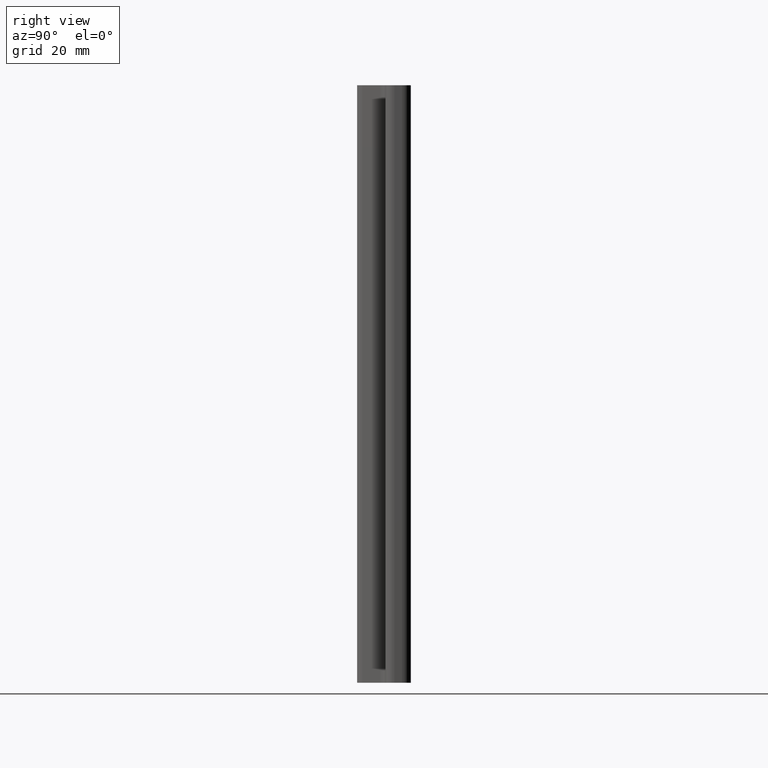
[diagram: clean part render]
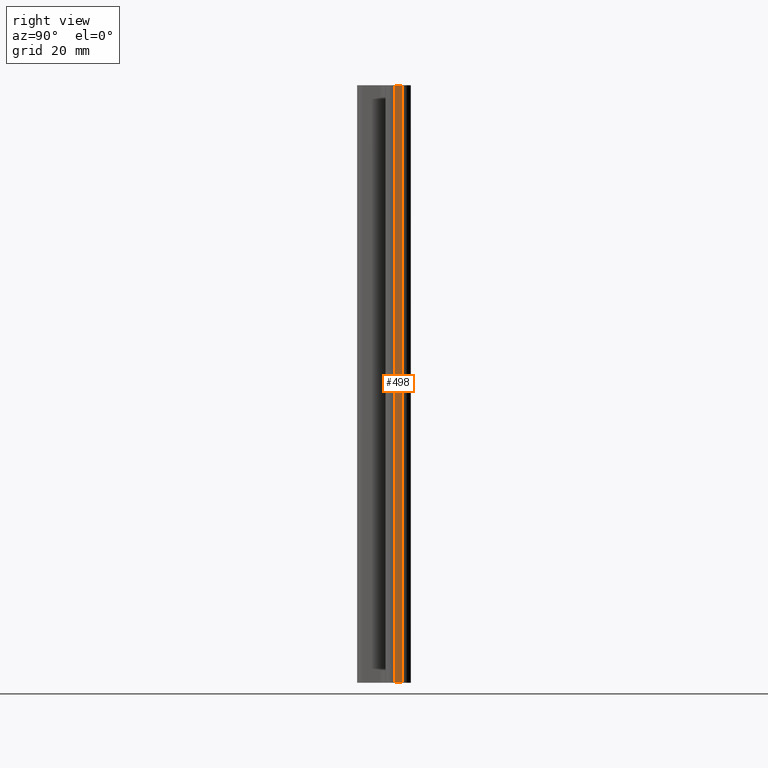
[diagram: same view with one face highlighted and labeled with its STEP entity id]
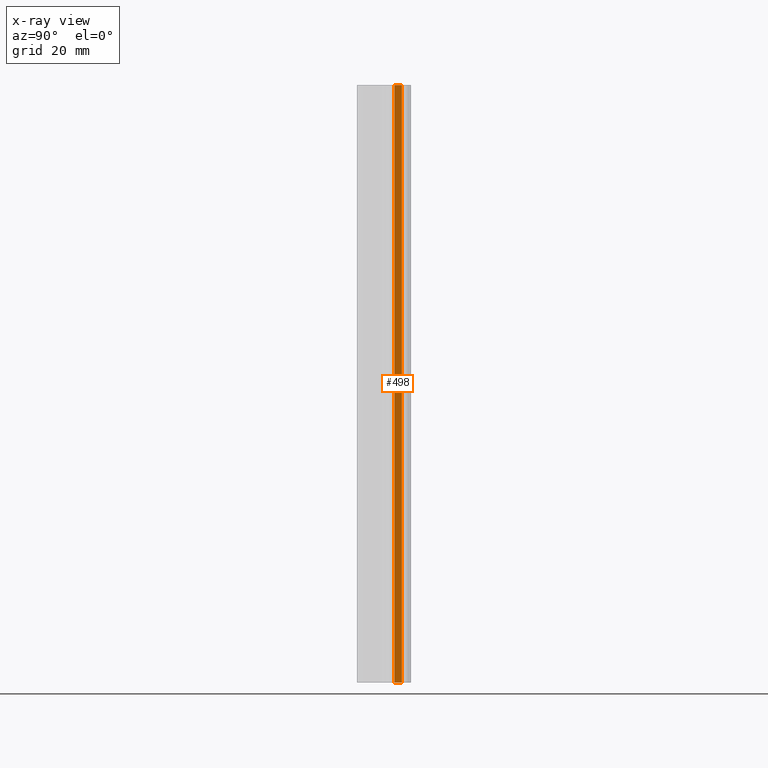
[diagram: x-ray of the same camera — body ghosted, the highlighted face saturated]
A machine part, right view. The second image highlights one B-rep face of the part: STEP entity #498.
The next image is the same camera in x-ray: the body ghosted, the highlighted face saturated — about 0% of this face is hidden behind the body in this view.
In plain terms, the highlighted planar face has unit normal (1, 0, 0).
Its self-contained STEP definition (entity closure, byte-faithful):
#25=PLANE('',#560);
#50=FACE_OUTER_BOUND('',#76,.T.);
#76=EDGE_LOOP('',(#405,#406,#407,#408));
#122=LINE('',#846,#170);
#123=LINE('',#849,#171);
#124=LINE('',#851,#172);
#125=LINE('',#852,#173);
#170=VECTOR('',#696,10.);
#171=VECTOR('',#699,10.);
#172=VECTOR('',#700,10.);
#173=VECTOR('',#701,10.);
#243=VERTEX_POINT('',#842);
#244=VERTEX_POINT('',#844);
#245=VERTEX_POINT('',#848);
#246=VERTEX_POINT('',#850);
#312=EDGE_CURVE('',#243,#244,#122,.T.);
#313=EDGE_CURVE('',#245,#243,#123,.T.);
#314=EDGE_CURVE('',#246,#244,#124,.T.);
#315=EDGE_CURVE('',#245,#246,#125,.T.);
#405=ORIENTED_EDGE('',*,*,#313,.T.);
#406=ORIENTED_EDGE('',*,*,#312,.T.);
#407=ORIENTED_EDGE('',*,*,#314,.F.);
#408=ORIENTED_EDGE('',*,*,#315,.F.);
#498=ADVANCED_FACE('',(#50),#25,.T.);
#560=AXIS2_PLACEMENT_3D('',#847,#697,#698);
#696=DIRECTION('',(0.,0.,1.));
#697=DIRECTION('center_axis',(1.,0.,0.));
#698=DIRECTION('ref_axis',(0.,1.,0.));
#699=DIRECTION('',(0.,1.,0.));
#700=DIRECTION('',(0.,1.,0.));
#701=DIRECTION('',(0.,0.,1.));
#842=CARTESIAN_POINT('',(61.4966655559123,15.0000000001704,0.));
#844=CARTESIAN_POINT('',(61.4966655559123,15.0000000001704,200.));
#846=CARTESIAN_POINT('',(61.4966655559123,15.0000000001704,0.));
#847=CARTESIAN_POINT('Origin',(61.4966655559123,12.4999999999735,0.));
#848=CARTESIAN_POINT('',(61.4966655559123,12.4999999999735,0.));
#849=CARTESIAN_POINT('',(61.4966655559123,12.4999999999735,0.));
#850=CARTESIAN_POINT('',(61.4966655559123,12.4999999999735,200.));
#851=CARTESIAN_POINT('',(61.4966655559123,12.4999999999735,200.));
#852=CARTESIAN_POINT('',(61.4966655559123,12.4999999999735,0.));